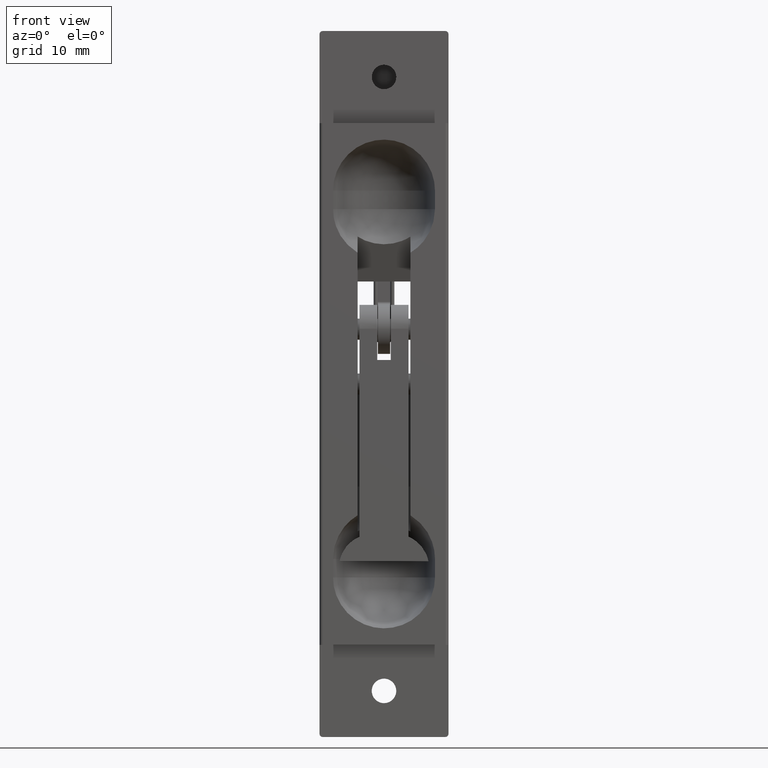
[diagram: clean part render]
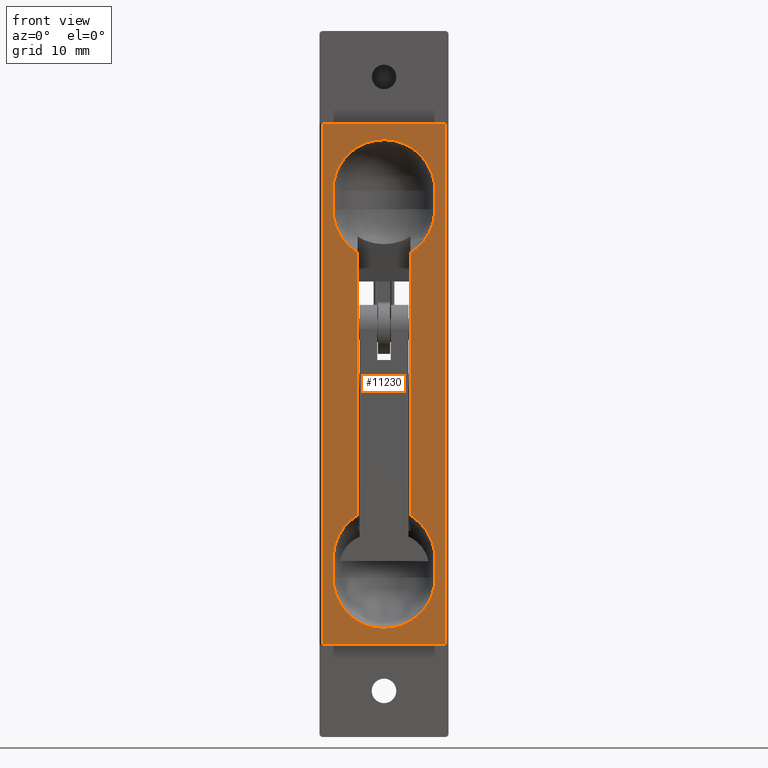
[diagram: same view with one face highlighted and labeled with its STEP entity id]
A machine part, front view. The second image highlights one B-rep face of the part: STEP entity #11230.
In plain terms, the highlighted face is a freeform B-spline surface patch.
Its self-contained STEP definition (entity closure, byte-faithful):
#9663=CARTESIAN_POINT('',(-10.0,-15.500000000000000,-42.500000000000000));
#9664=VERTEX_POINT('',#9663);
#9680=CARTESIAN_POINT('',(-10.0,-15.500000000000000,42.500000000000000));
#9681=VERTEX_POINT('',#9680);
#9682=CARTESIAN_POINT('',(-10.0,-15.500000000000000,42.500000000000000));
#9683=CARTESIAN_POINT('',(-10.0,-15.500000000000000,-42.500000000000000));
#9684=QUASI_UNIFORM_CURVE('',1,(#9682,#9683),.UNSPECIFIED.,.F.,.U.);
#9685=EDGE_CURVE('',#9681,#9664,#9684,.T.);
#9726=CARTESIAN_POINT('',(10.0,-15.500000000000000,-42.500000000000000));
#9727=VERTEX_POINT('',#9726);
#9748=CARTESIAN_POINT('',(10.0,-15.500000000000000,42.500000000000000));
#9749=VERTEX_POINT('',#9748);
#9763=CARTESIAN_POINT('',(10.0,-15.500000000000000,-42.500000000000000));
#9764=CARTESIAN_POINT('',(10.0,-15.500000000000000,42.500000000000000));
#9765=QUASI_UNIFORM_CURVE('',1,(#9763,#9764),.UNSPECIFIED.,.F.,.U.);
#9766=EDGE_CURVE('',#9727,#9749,#9765,.T.);
#10084=CARTESIAN_POINT('',(8.307225770376050,-15.500000000000000,28.500000000000000));
#10085=VERTEX_POINT('',#10084);
#10086=CARTESIAN_POINT('',(8.307225770376050,-15.500000000000000,31.500000000000000));
#10087=VERTEX_POINT('',#10086);
#10088=CARTESIAN_POINT('',(8.307225770376050,-15.500000000000000,28.500000000000000));
#10089=CARTESIAN_POINT('',(8.307225770376050,-15.500000000000000,31.500000000000000));
#10090=QUASI_UNIFORM_CURVE('',1,(#10088,#10089),.UNSPECIFIED.,.F.,.U.);
#10091=EDGE_CURVE('',#10085,#10087,#10090,.T.);
#10093=CARTESIAN_POINT('',(-8.307225770376050,-15.500000000000000,31.500000000000000));
#10094=VERTEX_POINT('',#10093);
#10110=CARTESIAN_POINT('',(-8.307225770376050,-15.500000000000000,28.500000000000000));
#10111=VERTEX_POINT('',#10110);
#10112=CARTESIAN_POINT('',(-8.307225770376050,-15.500000000000000,31.500000000000000));
#10113=CARTESIAN_POINT('',(-8.307225770376050,-15.500000000000000,28.500000000000000));
#10114=QUASI_UNIFORM_CURVE('',1,(#10112,#10113),.UNSPECIFIED.,.F.,.U.);
#10115=EDGE_CURVE('',#10094,#10111,#10114,.T.);
#10160=CARTESIAN_POINT('',(-8.307225770376050,-15.500000000000000,31.500000000000000));
#10161=CARTESIAN_POINT('',(-8.307225770376050,-15.500000000000004,39.807225770376057));
#10162=CARTESIAN_POINT('',(0.0,-15.500000000000000,39.807225770376050));
#10163=CARTESIAN_POINT('',(8.307225770376050,-15.500000000000004,39.807225770376057));
#10164=CARTESIAN_POINT('',(8.307225770376050,-15.500000000000000,31.500000000000000));
#10172=(BOUNDED_CURVE()B_SPLINE_CURVE(2,(#10160,#10161,#10162,#10163,#10164),.UNSPECIFIED.,.F.,.U.)B_SPLINE_CURVE_WITH_KNOTS((3,2,3),(0.0,0.500000000000000,1.0),.UNSPECIFIED.)CURVE()GEOMETRIC_REPRESENTATION_ITEM()RATIONAL_B_SPLINE_CURVE((1.0,0.707106781186548,1.0,0.707106781186548,1.0))REPRESENTATION_ITEM(''));
#10173=EDGE_CURVE('',#10094,#10087,#10172,.T.);
#10196=CARTESIAN_POINT('',(8.307225770376050,-15.500000000000000,-31.500000000000000));
#10197=VERTEX_POINT('',#10196);
#10198=CARTESIAN_POINT('',(8.307225770376050,-15.500000000000000,-28.500000000000000));
#10199=VERTEX_POINT('',#10198);
#10200=CARTESIAN_POINT('',(8.307225770376050,-15.500000000000000,-31.500000000000000));
#10201=CARTESIAN_POINT('',(8.307225770376050,-15.500000000000000,-28.500000000000000));
#10202=QUASI_UNIFORM_CURVE('',1,(#10200,#10201),.UNSPECIFIED.,.F.,.U.);
#10203=EDGE_CURVE('',#10197,#10199,#10202,.T.);
#10205=CARTESIAN_POINT('',(-8.307225770376050,-15.500000000000000,-28.500000000000000));
#10206=VERTEX_POINT('',#10205);
#10222=CARTESIAN_POINT('',(-8.307225770376050,-15.500000000000000,-31.500000000000000));
#10223=VERTEX_POINT('',#10222);
#10224=CARTESIAN_POINT('',(-8.307225770376050,-15.500000000000000,-28.500000000000000));
#10225=CARTESIAN_POINT('',(-8.307225770376050,-15.500000000000000,-31.500000000000000));
#10226=QUASI_UNIFORM_CURVE('',1,(#10224,#10225),.UNSPECIFIED.,.F.,.U.);
#10227=EDGE_CURVE('',#10206,#10223,#10226,.T.);
#10272=CARTESIAN_POINT('',(8.307225770376050,-15.500000000000000,-31.500000000000000));
#10273=CARTESIAN_POINT('',(8.307225770376050,-15.500000000000004,-39.807225770376057));
#10274=CARTESIAN_POINT('',(0.0,-15.500000000000000,-39.807225770376050));
#10275=CARTESIAN_POINT('',(-8.307225770376050,-15.500000000000004,-39.807225770376057));
#10276=CARTESIAN_POINT('',(-8.307225770376050,-15.500000000000000,-31.500000000000000));
#10284=(BOUNDED_CURVE()B_SPLINE_CURVE(2,(#10272,#10273,#10274,#10275,#10276),.UNSPECIFIED.,.F.,.U.)B_SPLINE_CURVE_WITH_KNOTS((3,2,3),(0.0,0.500000000000000,1.0),.UNSPECIFIED.)CURVE()GEOMETRIC_REPRESENTATION_ITEM()RATIONAL_B_SPLINE_CURVE((1.0,0.707106781186548,1.0,0.707106781186548,1.0))REPRESENTATION_ITEM(''));
#10285=EDGE_CURVE('',#10197,#10223,#10284,.T.);
#10335=CARTESIAN_POINT('',(10.0,-15.500000000000000,42.500000000000000));
#10336=CARTESIAN_POINT('',(-10.0,-15.500000000000000,42.500000000000000));
#10337=QUASI_UNIFORM_CURVE('',1,(#10335,#10336),.UNSPECIFIED.,.F.,.U.);
#10338=EDGE_CURVE('',#9749,#9681,#10337,.T.);
#10407=CARTESIAN_POINT('',(10.0,-15.500000000000000,-42.500000000000000));
#10408=CARTESIAN_POINT('',(-10.0,-15.500000000000000,-42.500000000000000));
#10409=QUASI_UNIFORM_CURVE('',1,(#10407,#10408),.UNSPECIFIED.,.F.,.U.);
#10410=EDGE_CURVE('',#9727,#9664,#10409,.T.);
#10728=CARTESIAN_POINT('',(4.300000000000000,-15.500000000000000,-21.392257742433252));
#10729=VERTEX_POINT('',#10728);
#10743=CARTESIAN_POINT('',(4.300000000000000,-15.500000000000000,21.392257742433252));
#10744=VERTEX_POINT('',#10743);
#10745=CARTESIAN_POINT('',(4.300000000000000,-15.500000000000000,-21.392257742433252));
#10746=CARTESIAN_POINT('',(4.300000000000000,-15.500000000000000,21.392257742433252));
#10747=QUASI_UNIFORM_CURVE('',1,(#10745,#10746),.UNSPECIFIED.,.F.,.U.);
#10748=EDGE_CURVE('',#10729,#10744,#10747,.T.);
#10834=CARTESIAN_POINT('',(-4.300000000000000,-15.500000000000000,21.392257742433252));
#10835=VERTEX_POINT('',#10834);
#10849=CARTESIAN_POINT('',(-4.300000000000000,-15.500000000000000,-21.392257742433252));
#10850=VERTEX_POINT('',#10849);
#10851=CARTESIAN_POINT('',(-4.300000000000000,-15.500000000000000,-21.392257742433252));
#10852=CARTESIAN_POINT('',(-4.300000000000000,-15.500000000000000,21.392257742433252));
#10853=QUASI_UNIFORM_CURVE('',1,(#10851,#10852),.UNSPECIFIED.,.F.,.U.);
#10854=EDGE_CURVE('',#10850,#10835,#10853,.T.);
#11098=CARTESIAN_POINT('',(8.307225770376050,-15.500000000000000,28.500000000000000));
#11099=CARTESIAN_POINT('',(8.307225770376050,-15.499999999999995,23.816525560286841));
#11100=CARTESIAN_POINT('',(4.299999999999997,-15.500000000000000,21.392257742433259));
#11108=(BOUNDED_CURVE()B_SPLINE_CURVE(2,(#11098,#11099,#11100),.UNSPECIFIED.,.F.,.U.)CURVE()GEOMETRIC_REPRESENTATION_ITEM()QUASI_UNIFORM_CURVE()RATIONAL_B_SPLINE_CURVE((1.0,0.871097486166653,1.0))REPRESENTATION_ITEM(''));
#11109=EDGE_CURVE('',#10085,#10744,#11108,.T.);
#11112=CARTESIAN_POINT('',(-4.299999999999995,-15.500000000000000,21.392257742433259));
#11113=CARTESIAN_POINT('',(-8.307225770376050,-15.499999999999995,23.816525560286841));
#11114=CARTESIAN_POINT('',(-8.307225770376050,-15.500000000000000,28.500000000000000));
#11122=(BOUNDED_CURVE()B_SPLINE_CURVE(2,(#11112,#11113,#11114),.UNSPECIFIED.,.F.,.U.)CURVE()GEOMETRIC_REPRESENTATION_ITEM()QUASI_UNIFORM_CURVE()RATIONAL_B_SPLINE_CURVE((1.0,0.871097486166653,1.0))REPRESENTATION_ITEM(''));
#11123=EDGE_CURVE('',#10835,#10111,#11122,.T.);
#11157=CARTESIAN_POINT('',(-8.307225770376050,-15.500000000000000,-28.500000000000000));
#11158=CARTESIAN_POINT('',(-8.307225770376050,-15.500000000000005,-23.816525560286838));
#11159=CARTESIAN_POINT('',(-4.299999999999995,-15.500000000000000,-21.392257742433259));
#11167=(BOUNDED_CURVE()B_SPLINE_CURVE(2,(#11157,#11158,#11159),.UNSPECIFIED.,.F.,.U.)CURVE()GEOMETRIC_REPRESENTATION_ITEM()QUASI_UNIFORM_CURVE()RATIONAL_B_SPLINE_CURVE((1.0,0.871097486166653,1.0))REPRESENTATION_ITEM(''));
#11168=EDGE_CURVE('',#10206,#10850,#11167,.T.);
#11171=CARTESIAN_POINT('',(4.299999999999995,-15.500000000000000,-21.392257742433259));
#11172=CARTESIAN_POINT('',(8.307225770376050,-15.499999999999995,-23.816525560286841));
#11173=CARTESIAN_POINT('',(8.307225770376050,-15.500000000000000,-28.500000000000000));
#11181=(BOUNDED_CURVE()B_SPLINE_CURVE(2,(#11171,#11172,#11173),.UNSPECIFIED.,.F.,.U.)CURVE()GEOMETRIC_REPRESENTATION_ITEM()QUASI_UNIFORM_CURVE()RATIONAL_B_SPLINE_CURVE((1.0,0.871097486166653,1.0))REPRESENTATION_ITEM(''));
#11182=EDGE_CURVE('',#10729,#10199,#11181,.T.);
#11205=CARTESIAN_POINT('',(-10.998999961236120,-15.500000000000000,-46.745749835253513));
#11206=CARTESIAN_POINT('',(-10.998999961236120,-15.500000000000000,46.745752115131168));
#11207=CARTESIAN_POINT('',(10.999000497677921,-15.500000000000000,-46.745749835253513));
#11208=CARTESIAN_POINT('',(10.999000497677921,-15.500000000000000,46.745752115131168));
#11209=B_SPLINE_SURFACE_WITH_KNOTS('',1,1,((#11205,#11207),(#11206,#11208)),.UNSPECIFIED.,.F.,.F.,.U.,(2,2),(2,2),(0.0,93.491501950384674),(0.0,21.998000458914039),.UNSPECIFIED.);
#11210=ORIENTED_EDGE('',*,*,#10410,.F.);
#11211=ORIENTED_EDGE('',*,*,#9766,.T.);
#11212=ORIENTED_EDGE('',*,*,#10338,.T.);
#11213=ORIENTED_EDGE('',*,*,#9685,.T.);
#11214=EDGE_LOOP('',(#11210,#11211,#11212,#11213));
#11215=FACE_OUTER_BOUND('',#11214,.T.);
#11216=ORIENTED_EDGE('',*,*,#10748,.F.);
#11217=ORIENTED_EDGE('',*,*,#11182,.T.);
#11218=ORIENTED_EDGE('',*,*,#10203,.F.);
#11219=ORIENTED_EDGE('',*,*,#10285,.T.);
#11220=ORIENTED_EDGE('',*,*,#10227,.F.);
#11221=ORIENTED_EDGE('',*,*,#11168,.T.);
#11222=ORIENTED_EDGE('',*,*,#10854,.T.);
#11223=ORIENTED_EDGE('',*,*,#11123,.T.);
#11224=ORIENTED_EDGE('',*,*,#10115,.F.);
#11225=ORIENTED_EDGE('',*,*,#10173,.T.);
#11226=ORIENTED_EDGE('',*,*,#10091,.F.);
#11227=ORIENTED_EDGE('',*,*,#11109,.T.);
#11228=EDGE_LOOP('',(#11216,#11217,#11218,#11219,#11220,#11221,#11222,#11223,#11224,#11225,#11226,#11227));
#11229=FACE_BOUND('',#11228,.T.);
#11230=ADVANCED_FACE('',(#11215,#11229),#11209,.F.);